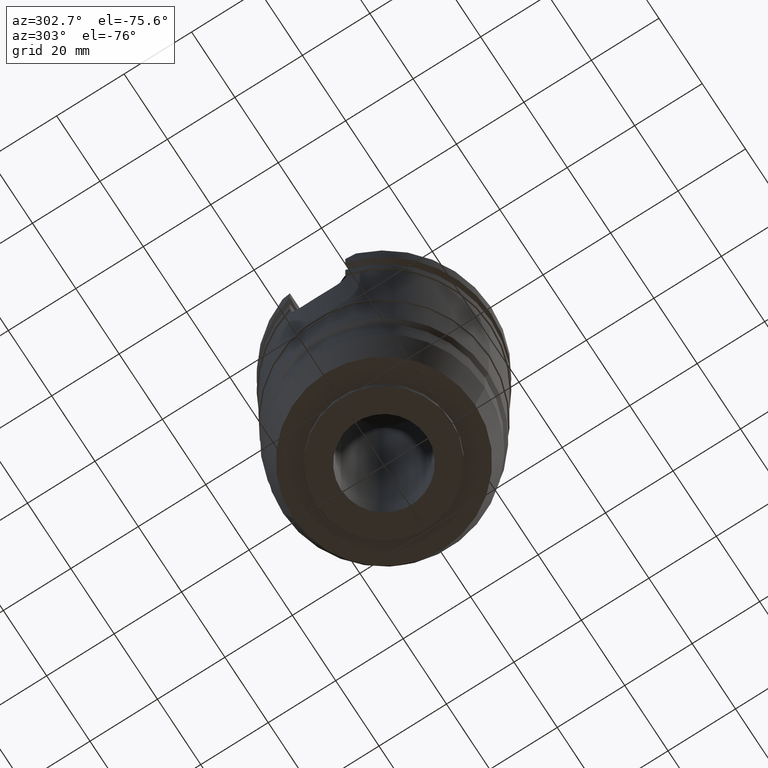
[diagram: clean part render]
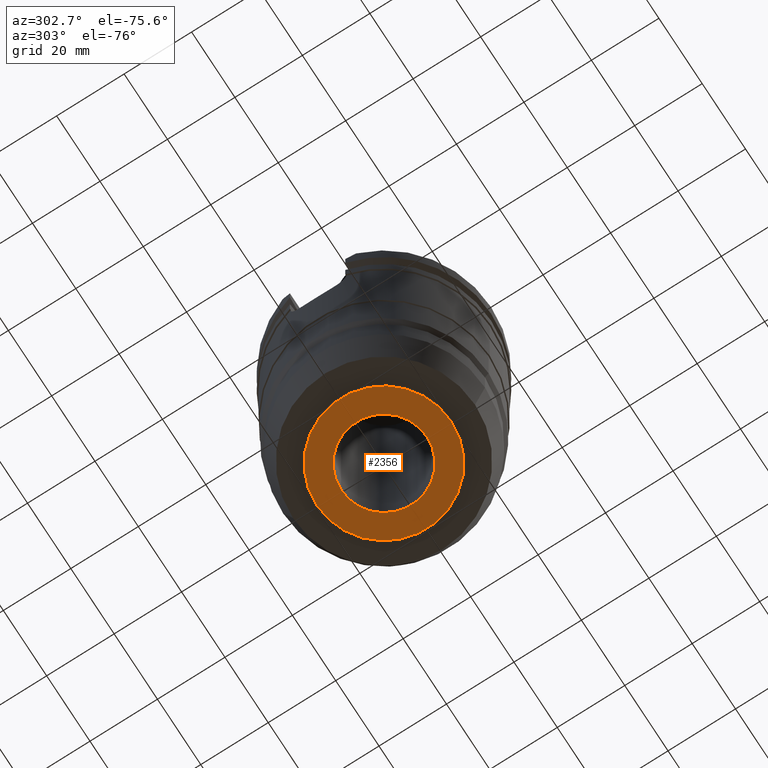
[diagram: same view with one face highlighted and labeled with its STEP entity id]
A machine part, auxiliary view. The second image highlights one B-rep face of the part: STEP entity #2356.
In plain terms, the highlighted planar face has unit normal (0, 0, 1).
Its self-contained STEP definition (entity closure, byte-faithful):
#980=CARTESIAN_POINT('',(0.E0,0.E0,-9.09E1));
#981=DIRECTION('',(0.E0,0.E0,1.E0));
#982=DIRECTION('',(0.E0,-1.E0,0.E0));
#983=AXIS2_PLACEMENT_3D('',#980,#981,#982);
#988=CARTESIAN_POINT('',(0.E0,0.E0,-9.09E1));
#989=DIRECTION('',(0.E0,0.E0,1.E0));
#990=DIRECTION('',(0.E0,1.E0,0.E0));
#991=AXIS2_PLACEMENT_3D('',#988,#989,#990);
#996=CARTESIAN_POINT('',(0.E0,0.E0,-9.09E1));
#997=DIRECTION('',(0.E0,0.E0,-1.E0));
#998=DIRECTION('',(0.E0,-1.E0,0.E0));
#999=AXIS2_PLACEMENT_3D('',#996,#997,#998);
#1004=CARTESIAN_POINT('',(0.E0,0.E0,-9.09E1));
#1005=DIRECTION('',(0.E0,0.E0,-1.E0));
#1006=DIRECTION('',(0.E0,1.E0,0.E0));
#1007=AXIS2_PLACEMENT_3D('',#1004,#1005,#1006);
#1571=CARTESIAN_POINT('',(0.E0,1.995E1,-9.09E1));
#1572=VERTEX_POINT('',#1571);
#1573=CARTESIAN_POINT('',(0.E0,-1.995E1,-9.09E1));
#1574=VERTEX_POINT('',#1573);
#1575=CARTESIAN_POINT('',(0.E0,-1.27E1,-9.09E1));
#1576=CARTESIAN_POINT('',(0.E0,1.27E1,-9.09E1));
#1577=VERTEX_POINT('',#1575);
#1578=VERTEX_POINT('',#1576);
#2341=CARTESIAN_POINT('',(0.E0,0.E0,-9.09E1));
#2342=DIRECTION('',(0.E0,0.E0,1.E0));
#2343=DIRECTION('',(0.E0,1.E0,0.E0));
#2344=AXIS2_PLACEMENT_3D('',#2341,#2342,#2343);
#2345=PLANE('',#2344);
#2346=ORIENTED_EDGE('',*,*,#2334,.T.);
#2347=ORIENTED_EDGE('',*,*,#2323,.T.);
#2348=EDGE_LOOP('',(#2346,#2347));
#2349=FACE_OUTER_BOUND('',#2348,.F.);
#2351=ORIENTED_EDGE('',*,*,#2350,.T.);
#2353=ORIENTED_EDGE('',*,*,#2352,.T.);
#2354=EDGE_LOOP('',(#2351,#2353));
#2355=FACE_BOUND('',#2354,.F.);
#984=CIRCLE('',#983,1.995E1);
#992=CIRCLE('',#991,1.995E1);
#1000=CIRCLE('',#999,1.27E1);
#1008=CIRCLE('',#1007,1.27E1);
#2323=EDGE_CURVE('',#1572,#1574,#992,.T.);
#2334=EDGE_CURVE('',#1574,#1572,#984,.T.);
#2350=EDGE_CURVE('',#1577,#1578,#1000,.T.);
#2352=EDGE_CURVE('',#1578,#1577,#1008,.T.);
#2356=ADVANCED_FACE('',(#2349,#2355),#2345,.F.);